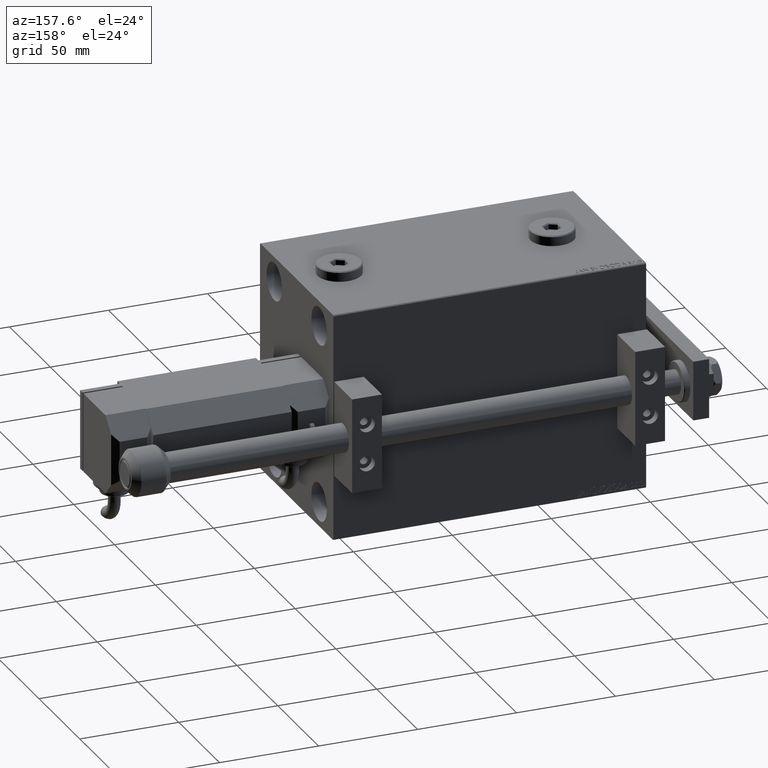
[diagram: clean part render]
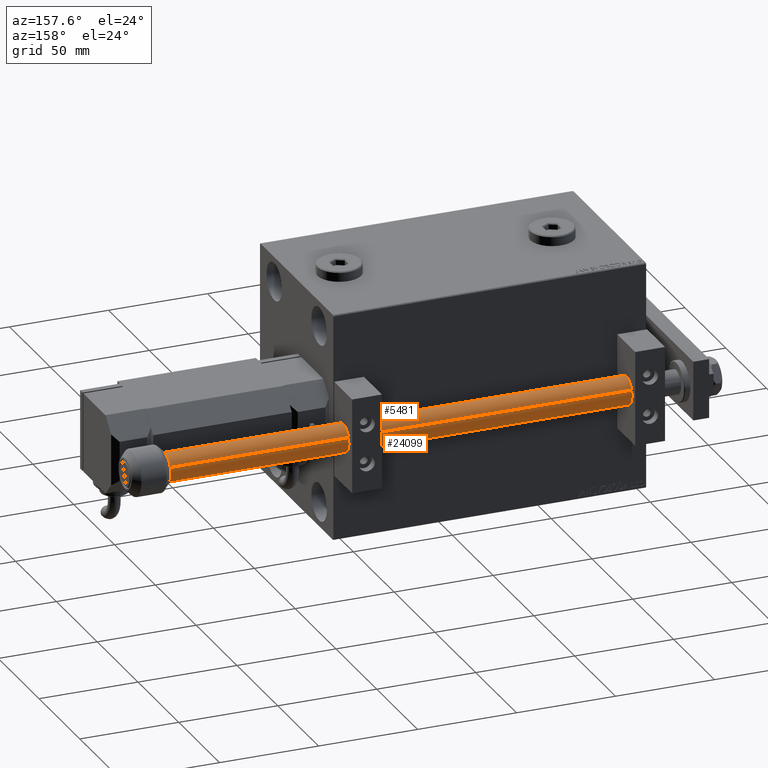
[diagram: same view with one multi-face feature highlighted, each face labeled with its STEP entity id]
A machine part, auxiliary view. The highlighted faces form ONE feature: a constant-radius fillet chain: 2 tangent blend faces with common blend radius 7 mm. The faces share edges in the B-rep.
Their STEP definitions:
[1] entity #5481 (Cylinder):
#263 = EDGE_CURVE ( 'NONE', #15757, #34576, #9188, .T. ) ;
#1189 = DIRECTION ( 'NONE',  ( -0.000000000000000000, -0.000000000000000000, -1.000000000000000000 ) ) ;
#1234 = VERTEX_POINT ( 'NONE', #43892 ) ;
#2114 = DIRECTION ( 'NONE',  ( 0.000000000000000000, 0.000000000000000000, -1.000000000000000000 ) ) ;
#4492 = DIRECTION ( 'NONE',  ( 1.000000000000000000, 0.000000000000000000, 0.000000000000000000 ) ) ;
#5481 = ADVANCED_FACE ( 'NONE', ( #50416 ), #42674, .T. ) ;
#5819 = CIRCLE ( 'NONE', #34640, 7.000000000000000000 ) ;
#8938 = DIRECTION ( 'NONE',  ( -0.000000000000000000, -0.000000000000000000, 1.000000000000000000 ) ) ;
#9188 = CIRCLE ( 'NONE', #36413, 7.000000000000000000 ) ;
#9608 = EDGE_CURVE ( 'NONE', #34576, #18496, #35904, .T. ) ;
#10225 = AXIS2_PLACEMENT_3D ( 'NONE', #23059, #19198, #15310 ) ;
#10275 = CARTESIAN_POINT ( 'NONE',  ( 7.000000000000000000, 8.572527594031473190E-16, 267.0000000000000000 ) ) ;
#13061 = DIRECTION ( 'NONE',  ( 1.000000000000000000, 0.000000000000000000, 0.000000000000000000 ) ) ;
#13228 = EDGE_CURVE ( 'NONE', #29871, #1234, #47380, .T. ) ;
#13457 = CARTESIAN_POINT ( 'NONE',  ( -7.000000000000000000, 0.000000000000000000, 267.0000000000000000 ) ) ;
#15059 = EDGE_CURVE ( 'NONE', #1234, #19511, #15378, .T. ) ;
#15310 = DIRECTION ( 'NONE',  ( -1.000000000000000000, 0.000000000000000000, 0.000000000000000000 ) ) ;
#15378 = CIRCLE ( 'NONE', #41879, 7.000000000000000000 ) ;
#15757 = VERTEX_POINT ( 'NONE', #10275 ) ;
#18496 = VERTEX_POINT ( 'NONE', #44366 ) ;
#19198 = DIRECTION ( 'NONE',  ( -0.000000000000000000, -0.000000000000000000, -1.000000000000000000 ) ) ;
#19511 = VERTEX_POINT ( 'NONE', #30382 ) ;
#19789 = ORIENTED_EDGE ( 'NONE', *, *, #50342, .T. ) ;
#20531 = CARTESIAN_POINT ( 'NONE',  ( -7.000000000000000000, 0.000000000000000000, 268.0000000000000000 ) ) ;
#20741 = DIRECTION ( 'NONE',  ( 0.000000000000000000, 0.000000000000000000, -1.000000000000000000 ) ) ;
#22479 = CARTESIAN_POINT ( 'NONE',  ( 0.000000000000000000, 0.000000000000000000, 267.0000000000000000 ) ) ;
#22851 = ORIENTED_EDGE ( 'NONE', *, *, #13228, .T. ) ;
#23059 = CARTESIAN_POINT ( 'NONE',  ( 0.000000000000000000, 0.000000000000000000, 268.0000000000000000 ) ) ;
#23567 = AXIS2_PLACEMENT_3D ( 'NONE', #36369, #24500, #25011 ) ;
#24176 = CARTESIAN_POINT ( 'NONE',  ( 7.000000000000000000, 8.572527594031473190E-16, 268.0000000000000000 ) ) ;
#24500 = DIRECTION ( 'NONE',  ( 0.000000000000000000, 0.000000000000000000, -1.000000000000000000 ) ) ;
#25011 = DIRECTION ( 'NONE',  ( 1.000000000000000000, 0.000000000000000000, 0.000000000000000000 ) ) ;
#27783 = DIRECTION ( 'NONE',  ( -0.000000000000000000, -0.000000000000000000, -1.000000000000000000 ) ) ;
#29492 = VECTOR ( 'NONE', #1189, 1000.000000000000000 ) ;
#29871 = VERTEX_POINT ( 'NONE', #13457 ) ;
#30382 = CARTESIAN_POINT ( 'NONE',  ( 7.000000000000000000, 8.572527594031473190E-16, 2.000000000000057288 ) ) ;
#34576 = VERTEX_POINT ( 'NONE', #35966 ) ;
#34640 = AXIS2_PLACEMENT_3D ( 'NONE', #40350, #20741, #4492 ) ;
#34994 = EDGE_CURVE ( 'NONE', #15757, #19511, #51040, .T. ) ;
#35904 = CIRCLE ( 'NONE', #23567, 7.000000000000000000 ) ;
#35966 = CARTESIAN_POINT ( 'NONE',  ( 0.5000000000000001110, -6.982120021884471228, 267.0000000000000000 ) ) ;
#36369 = CARTESIAN_POINT ( 'NONE',  ( 0.000000000000000000, 0.000000000000000000, 267.0000000000000000 ) ) ;
#36413 = AXIS2_PLACEMENT_3D ( 'NONE', #22479, #2114, #45208 ) ;
#38370 = VECTOR ( 'NONE', #27783, 1000.000000000000000 ) ;
#38535 = EDGE_LOOP ( 'NONE', ( #38766, #41088, #42485, #19789, #22851, #46405 ) ) ;
#38766 = ORIENTED_EDGE ( 'NONE', *, *, #34994, .F. ) ;
#40350 = CARTESIAN_POINT ( 'NONE',  ( 0.000000000000000000, 0.000000000000000000, 267.0000000000000000 ) ) ;
#41088 = ORIENTED_EDGE ( 'NONE', *, *, #263, .T. ) ;
#41879 = AXIS2_PLACEMENT_3D ( 'NONE', #44300, #8938, #13061 ) ;
#42485 = ORIENTED_EDGE ( 'NONE', *, *, #9608, .T. ) ;
#42674 = CYLINDRICAL_SURFACE ( 'NONE', #10225, 7.000000000000000000 ) ;
#43892 = CARTESIAN_POINT ( 'NONE',  ( -7.000000000000000000, 0.000000000000000000, 2.000000000000057288 ) ) ;
#44300 = CARTESIAN_POINT ( 'NONE',  ( 0.000000000000000000, 0.000000000000000000, 2.000000000000057288 ) ) ;
#44366 = CARTESIAN_POINT ( 'NONE',  ( -0.4999999999999975020, -6.982120021884471228, 267.0000000000000000 ) ) ;
#45208 = DIRECTION ( 'NONE',  ( 1.000000000000000000, 0.000000000000000000, 0.000000000000000000 ) ) ;
#46405 = ORIENTED_EDGE ( 'NONE', *, *, #15059, .T. ) ;
#47380 = LINE ( 'NONE', #20531, #29492 ) ;
#50342 = EDGE_CURVE ( 'NONE', #18496, #29871, #5819, .T. ) ;
#50416 = FACE_OUTER_BOUND ( 'NONE', #38535, .T. ) ;
#51040 = LINE ( 'NONE', #24176, #38370 ) ;
[2] entity #24099 (Cylinder):
#521 = EDGE_CURVE ( 'NONE', #19511, #1234, #28964, .T. ) ;
#1189 = DIRECTION ( 'NONE',  ( -0.000000000000000000, -0.000000000000000000, -1.000000000000000000 ) ) ;
#1234 = VERTEX_POINT ( 'NONE', #43892 ) ;
#3003 = CARTESIAN_POINT ( 'NONE',  ( 0.000000000000000000, 0.000000000000000000, 2.000000000000057288 ) ) ;
#3142 = ORIENTED_EDGE ( 'NONE', *, *, #39421, .T. ) ;
#7395 = AXIS2_PLACEMENT_3D ( 'NONE', #11765, #43498, #27494 ) ;
#7476 = CIRCLE ( 'NONE', #20654, 7.000000000000000000 ) ;
#10275 = CARTESIAN_POINT ( 'NONE',  ( 7.000000000000000000, 8.572527594031473190E-16, 267.0000000000000000 ) ) ;
#11765 = CARTESIAN_POINT ( 'NONE',  ( 0.000000000000000000, 0.000000000000000000, 267.0000000000000000 ) ) ;
#12255 = ORIENTED_EDGE ( 'NONE', *, *, #48276, .T. ) ;
#12261 = ORIENTED_EDGE ( 'NONE', *, *, #50806, .T. ) ;
#13228 = EDGE_CURVE ( 'NONE', #29871, #1234, #47380, .T. ) ;
#13457 = CARTESIAN_POINT ( 'NONE',  ( -7.000000000000000000, 0.000000000000000000, 267.0000000000000000 ) ) ;
#14157 = AXIS2_PLACEMENT_3D ( 'NONE', #3003, #30847, #22354 ) ;
#15757 = VERTEX_POINT ( 'NONE', #10275 ) ;
#19511 = VERTEX_POINT ( 'NONE', #30382 ) ;
#19550 = DIRECTION ( 'NONE',  ( 1.000000000000000000, 0.000000000000000000, 0.000000000000000000 ) ) ;
#19556 = AXIS2_PLACEMENT_3D ( 'NONE', #24974, #41484, #37594 ) ;
#20309 = CARTESIAN_POINT ( 'NONE',  ( -0.4999999999999992784, 6.982120021884471228, 267.0000000000000000 ) ) ;
#20368 = CARTESIAN_POINT ( 'NONE',  ( 0.5000000000000000000, 6.982120021884470340, 267.0000000000000000 ) ) ;
#20531 = CARTESIAN_POINT ( 'NONE',  ( -7.000000000000000000, 0.000000000000000000, 268.0000000000000000 ) ) ;
#20654 = AXIS2_PLACEMENT_3D ( 'NONE', #46914, #39159, #19550 ) ;
#22311 = ORIENTED_EDGE ( 'NONE', *, *, #13228, .F. ) ;
#22354 = DIRECTION ( 'NONE',  ( 1.000000000000000000, 0.000000000000000000, 0.000000000000000000 ) ) ;
#24099 = ADVANCED_FACE ( 'NONE', ( #42523 ), #42781, .T. ) ;
#24176 = CARTESIAN_POINT ( 'NONE',  ( 7.000000000000000000, 8.572527594031473190E-16, 268.0000000000000000 ) ) ;
#24974 = CARTESIAN_POINT ( 'NONE',  ( 0.000000000000000000, 0.000000000000000000, 267.0000000000000000 ) ) ;
#26268 = DIRECTION ( 'NONE',  ( -0.000000000000000000, -0.000000000000000000, -1.000000000000000000 ) ) ;
#27299 = VERTEX_POINT ( 'NONE', #20368 ) ;
#27494 = DIRECTION ( 'NONE',  ( 1.000000000000000000, 0.000000000000000000, 0.000000000000000000 ) ) ;
#27783 = DIRECTION ( 'NONE',  ( -0.000000000000000000, -0.000000000000000000, -1.000000000000000000 ) ) ;
#27846 = ORIENTED_EDGE ( 'NONE', *, *, #521, .T. ) ;
#28271 = EDGE_LOOP ( 'NONE', ( #3142, #39232, #27846, #22311, #12255, #12261 ) ) ;
#28964 = CIRCLE ( 'NONE', #14157, 7.000000000000000000 ) ;
#29492 = VECTOR ( 'NONE', #1189, 1000.000000000000000 ) ;
#29871 = VERTEX_POINT ( 'NONE', #13457 ) ;
#30382 = CARTESIAN_POINT ( 'NONE',  ( 7.000000000000000000, 8.572527594031473190E-16, 2.000000000000057288 ) ) ;
#30847 = DIRECTION ( 'NONE',  ( -0.000000000000000000, -0.000000000000000000, 1.000000000000000000 ) ) ;
#34994 = EDGE_CURVE ( 'NONE', #15757, #19511, #51040, .T. ) ;
#35026 = VERTEX_POINT ( 'NONE', #20309 ) ;
#37594 = DIRECTION ( 'NONE',  ( 1.000000000000000000, -8.881784197001252323E-16, 0.000000000000000000 ) ) ;
#38370 = VECTOR ( 'NONE', #27783, 1000.000000000000000 ) ;
#39159 = DIRECTION ( 'NONE',  ( 0.000000000000000000, 0.000000000000000000, -1.000000000000000000 ) ) ;
#39232 = ORIENTED_EDGE ( 'NONE', *, *, #34994, .T. ) ;
#39421 = EDGE_CURVE ( 'NONE', #27299, #15757, #50908, .T. ) ;
#41484 = DIRECTION ( 'NONE',  ( 0.000000000000000000, 0.000000000000000000, -1.000000000000000000 ) ) ;
#41985 = CIRCLE ( 'NONE', #7395, 7.000000000000000000 ) ;
#42523 = FACE_OUTER_BOUND ( 'NONE', #28271, .T. ) ;
#42781 = CYLINDRICAL_SURFACE ( 'NONE', #44563, 7.000000000000000000 ) ;
#43498 = DIRECTION ( 'NONE',  ( 0.000000000000000000, 0.000000000000000000, -1.000000000000000000 ) ) ;
#43892 = CARTESIAN_POINT ( 'NONE',  ( -7.000000000000000000, 0.000000000000000000, 2.000000000000057288 ) ) ;
#44563 = AXIS2_PLACEMENT_3D ( 'NONE', #50520, #26268, #46399 ) ;
#46399 = DIRECTION ( 'NONE',  ( -1.000000000000000000, 0.000000000000000000, 0.000000000000000000 ) ) ;
#46914 = CARTESIAN_POINT ( 'NONE',  ( 0.000000000000000000, 0.000000000000000000, 267.0000000000000000 ) ) ;
#47380 = LINE ( 'NONE', #20531, #29492 ) ;
#48276 = EDGE_CURVE ( 'NONE', #29871, #35026, #41985, .T. ) ;
#50520 = CARTESIAN_POINT ( 'NONE',  ( 0.000000000000000000, 0.000000000000000000, 268.0000000000000000 ) ) ;
#50806 = EDGE_CURVE ( 'NONE', #35026, #27299, #7476, .T. ) ;
#50908 = CIRCLE ( 'NONE', #19556, 7.000000000000000000 ) ;
#51040 = LINE ( 'NONE', #24176, #38370 ) ;